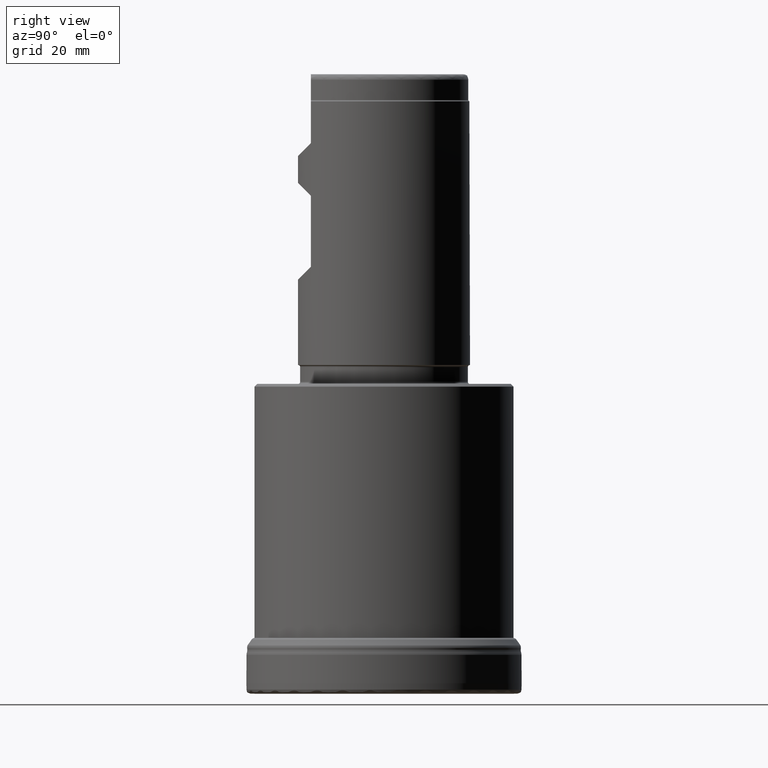
[diagram: clean part render]
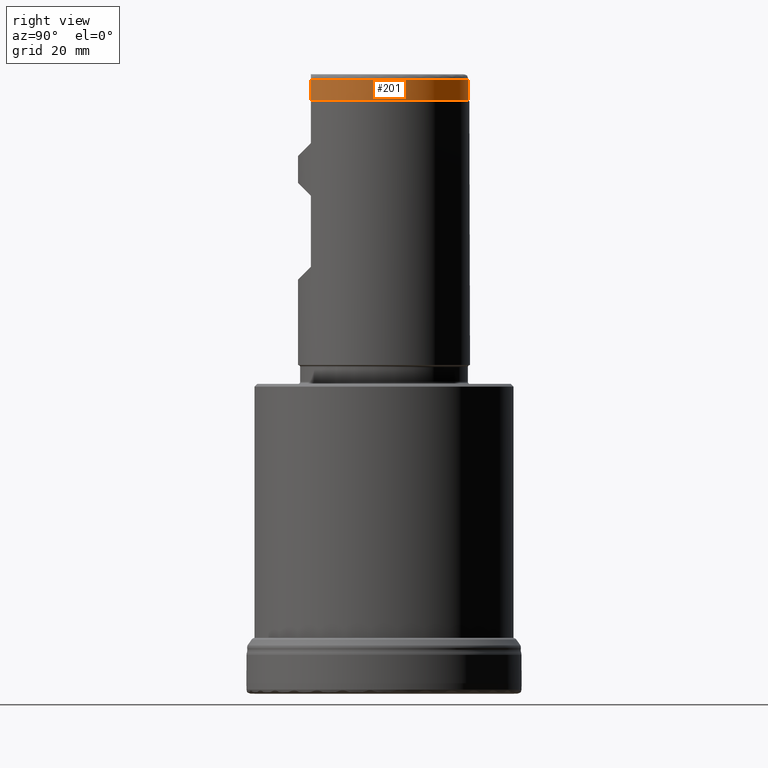
[diagram: same view with one face highlighted and labeled with its STEP entity id]
A machine part, right view. The second image highlights one B-rep face of the part: STEP entity #201.
In plain terms, the highlighted cylindrical surface (partial cylindrical patch) has radius 15.675 mm, axis along (0, 0, 1).
Its self-contained STEP definition (entity closure, byte-faithful):
#189=FACE_OUTER_BOUND('',#487,.T.);
#201=ADVANCED_FACE('',(#189),#274,.T.);
#274=CYLINDRICAL_SURFACE('',#1167,15.675);
#294=CIRCLE('',#1165,15.675);
#295=CIRCLE('',#1166,15.675);
#487=EDGE_LOOP('',(#662,#663,#664,#665));
#622=LINE('',#1892,#635);
#623=LINE('',#1896,#636);
#635=VECTOR('',#1299,1.);
#636=VECTOR('',#1302,1.);
#662=ORIENTED_EDGE('',*,*,#983,.T.);
#663=ORIENTED_EDGE('',*,*,#984,.T.);
#664=ORIENTED_EDGE('',*,*,#985,.T.);
#665=ORIENTED_EDGE('',*,*,#986,.T.);
#888=VERTEX_POINT('',#1890);
#889=VERTEX_POINT('',#1891);
#890=VERTEX_POINT('',#1893);
#891=VERTEX_POINT('',#1895);
#983=EDGE_CURVE('',#888,#889,#294,.T.);
#984=EDGE_CURVE('',#889,#890,#622,.T.);
#985=EDGE_CURVE('',#890,#891,#295,.T.);
#986=EDGE_CURVE('',#891,#888,#623,.T.);
#1165=AXIS2_PLACEMENT_3D('',#1889,#1297,#1298);
#1166=AXIS2_PLACEMENT_3D('',#1894,#1300,#1301);
#1167=AXIS2_PLACEMENT_3D('',#1897,#1303,#1304);
#1297=DIRECTION('',(0.,-1.17145536458252E-15,-1.));
#1298=DIRECTION('',(0.,-1.,8.85345314693108E-16));
#1299=DIRECTION('',(0.,-1.17145536458252E-15,-1.));
#1300=DIRECTION('',(0.,1.17145536458252E-15,1.));
#1301=DIRECTION('',(0.,-1.,8.85345314693108E-16));
#1302=DIRECTION('',(0.,1.17145536458252E-15,1.));
#1303=DIRECTION('',(0.,1.17145536458252E-15,1.));
#1304=DIRECTION('',(0.,-1.,1.17145536458252E-15));
#1889=CARTESIAN_POINT('',(0.,1.327258928072E-13,113.3));
#1890=CARTESIAN_POINT('',(-7.98721893028869,-13.4873999999999,113.299999999989));
#1891=CARTESIAN_POINT('',(7.98721893026602,-13.4873999999999,113.3));
#1892=CARTESIAN_POINT('',(7.98721893026602,-13.4874,1.57998870842703E-14));
#1893=CARTESIAN_POINT('',(7.98721893026602,-13.4873999999999,109.5));
#1894=CARTESIAN_POINT('',(0.,1.28274362421786E-13,109.5));
#1895=CARTESIAN_POINT('',(-7.98721893026602,-13.4873999999999,109.5));
#1896=CARTESIAN_POINT('',(-7.98721893026602,-13.4874,1.57998870842703E-14));
#1897=CARTESIAN_POINT('',(0.,0.,0.));